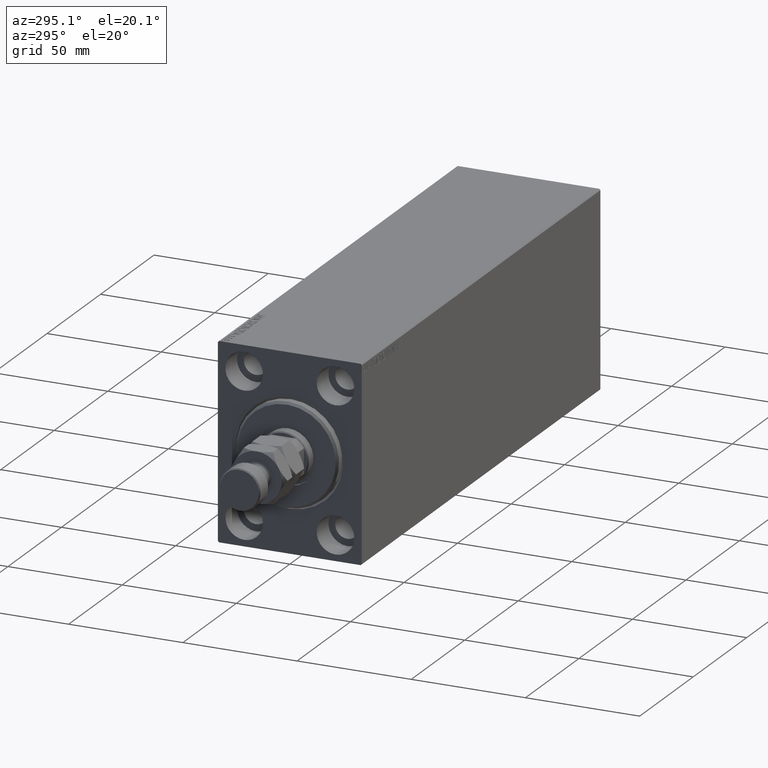
[diagram: clean part render]
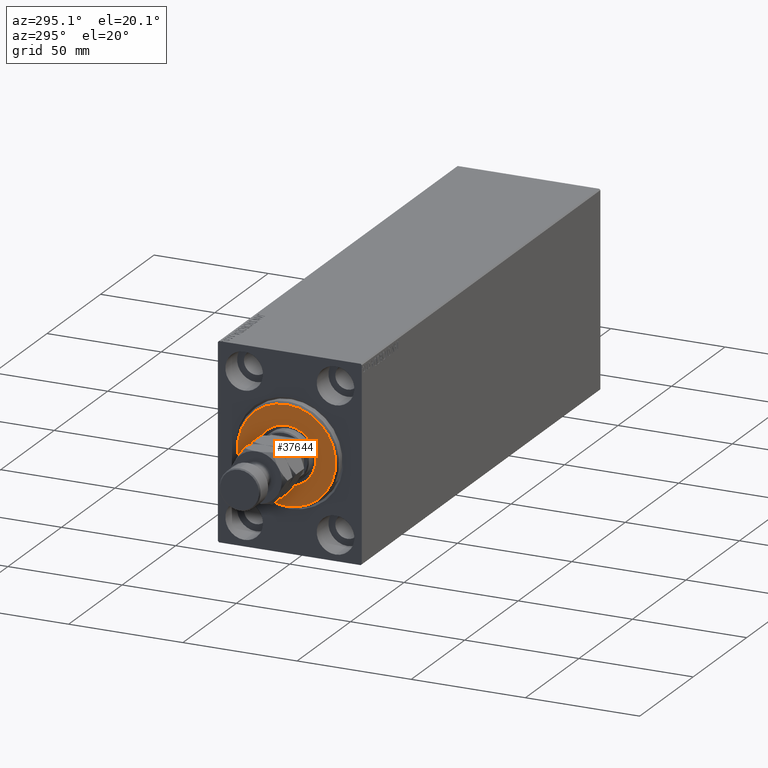
[diagram: same view with one face highlighted and labeled with its STEP entity id]
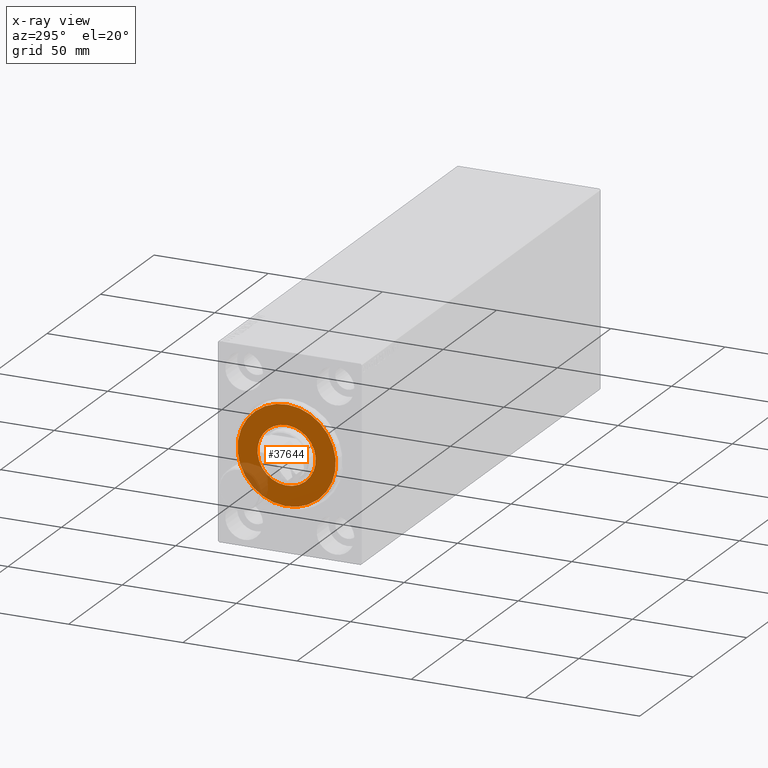
[diagram: x-ray of the same camera — body ghosted, the highlighted face saturated]
A machine part, auxiliary view. The second image highlights one B-rep face of the part: STEP entity #37644.
The next image is the same camera in x-ray: the body ghosted, the highlighted face saturated — about 11% of this face is hidden behind the body in this view.
In plain terms, the highlighted planar face has unit normal (-1, 0, 0).
Its self-contained STEP definition (entity closure, byte-faithful):
#170 = EDGE_CURVE ( 'NONE', #30862, #14514, #30652, .T. ) ;
#195 = VERTEX_POINT ( 'NONE', #31338 ) ;
#1935 = ORIENTED_EDGE ( 'NONE', *, *, #34749, .T. ) ;
#3065 = VERTEX_POINT ( 'NONE', #45245 ) ;
#7639 = CARTESIAN_POINT ( 'NONE',  ( 3.000000000000000000, 0.000000000000000000, 0.000000000000000000 ) ) ;
#8198 = EDGE_CURVE ( 'NONE', #195, #3065, #41467, .T. ) ;
#8422 = DIRECTION ( 'NONE',  ( 0.000000000000000000, 0.000000000000000000, -1.000000000000000000 ) ) ;
#9127 = CARTESIAN_POINT ( 'NONE',  ( 3.000000000000000000, 0.000000000000000000, 0.000000000000000000 ) ) ;
#11467 = AXIS2_PLACEMENT_3D ( 'NONE', #36442, #36219, #8422 ) ;
#14514 = VERTEX_POINT ( 'NONE', #45014 ) ;
#16065 = AXIS2_PLACEMENT_3D ( 'NONE', #23928, #19811, #16356 ) ;
#16356 = DIRECTION ( 'NONE',  ( 0.000000000000000000, 0.000000000000000000, -1.000000000000000000 ) ) ;
#17179 = EDGE_LOOP ( 'NONE', ( #36856, #36625 ) ) ;
#17766 = DIRECTION ( 'NONE',  ( 0.000000000000000000, 0.000000000000000000, -1.000000000000000000 ) ) ;
#19811 = DIRECTION ( 'NONE',  ( 1.000000000000000000, -0.000000000000000000, 0.000000000000000000 ) ) ;
#21440 = AXIS2_PLACEMENT_3D ( 'NONE', #7639, #35213, #17766 ) ;
#22228 = FACE_BOUND ( 'NONE', #23019, .T. ) ;
#23019 = EDGE_LOOP ( 'NONE', ( #1935, #23227 ) ) ;
#23159 = DIRECTION ( 'NONE',  ( -1.000000000000000000, 0.000000000000000000, -0.000000000000000000 ) ) ;
#23227 = ORIENTED_EDGE ( 'NONE', *, *, #170, .T. ) ;
#23928 = CARTESIAN_POINT ( 'NONE',  ( 3.000000000000000000, 0.000000000000000000, 0.000000000000000000 ) ) ;
#24485 = DIRECTION ( 'NONE',  ( 0.000000000000000000, 0.000000000000000000, -1.000000000000000000 ) ) ;
#25066 = EDGE_CURVE ( 'NONE', #3065, #195, #34379, .T. ) ;
#29108 = FACE_OUTER_BOUND ( 'NONE', #17179, .T. ) ;
#30652 = CIRCLE ( 'NONE', #37259, 12.75000000000000000 ) ;
#30862 = VERTEX_POINT ( 'NONE', #41395 ) ;
#31338 = CARTESIAN_POINT ( 'NONE',  ( 3.000000000000000000, 2.694222958124177598E-15, -21.50000000000000355 ) ) ;
#33131 = CIRCLE ( 'NONE', #21440, 12.75000000000000000 ) ;
#34379 = CIRCLE ( 'NONE', #16065, 21.50000000000000355 ) ;
#34749 = EDGE_CURVE ( 'NONE', #14514, #30862, #33131, .T. ) ;
#34815 = DIRECTION ( 'NONE',  ( 1.000000000000000000, -0.000000000000000000, 0.000000000000000000 ) ) ;
#35213 = DIRECTION ( 'NONE',  ( -1.000000000000000000, 0.000000000000000000, -0.000000000000000000 ) ) ;
#36219 = DIRECTION ( 'NONE',  ( 1.000000000000000000, -0.000000000000000000, 0.000000000000000000 ) ) ;
#36442 = CARTESIAN_POINT ( 'NONE',  ( 3.000000000000000000, 0.000000000000000000, 0.000000000000000000 ) ) ;
#36625 = ORIENTED_EDGE ( 'NONE', *, *, #8198, .T. ) ;
#36856 = ORIENTED_EDGE ( 'NONE', *, *, #25066, .T. ) ;
#37151 = DIRECTION ( 'NONE',  ( 0.000000000000000000, 0.000000000000000000, -1.000000000000000000 ) ) ;
#37259 = AXIS2_PLACEMENT_3D ( 'NONE', #9127, #23159, #37151 ) ;
#37644 = ADVANCED_FACE ( 'NONE', ( #29108, #22228 ), #43573, .T. ) ;
#41363 = AXIS2_PLACEMENT_3D ( 'NONE', #41938, #34815, #24485 ) ;
#41395 = CARTESIAN_POINT ( 'NONE',  ( 3.000000000000000000, 1.561424668912874914E-15, -12.75000000000000000 ) ) ;
#41467 = CIRCLE ( 'NONE', #41363, 21.50000000000000355 ) ;
#41938 = CARTESIAN_POINT ( 'NONE',  ( 3.000000000000000000, 0.000000000000000000, 0.000000000000000000 ) ) ;
#43573 = PLANE ( 'NONE',  #11467 ) ;
#45014 = CARTESIAN_POINT ( 'NONE',  ( 3.000000000000000000, 0.000000000000000000, 12.75000000000000000 ) ) ;
#45245 = CARTESIAN_POINT ( 'NONE',  ( 3.000000000000000000, 0.000000000000000000, 21.50000000000000355 ) ) ;